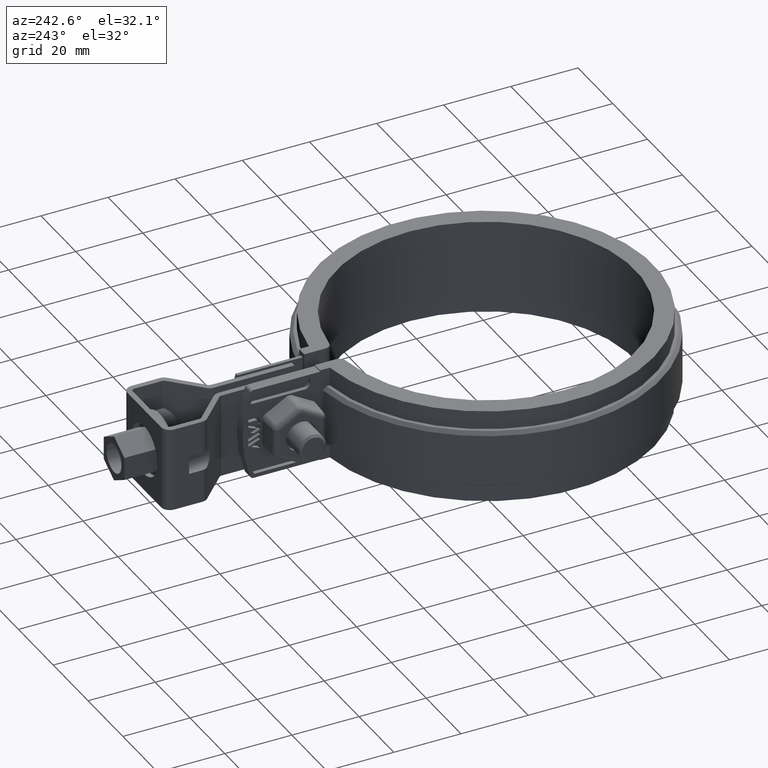
[diagram: clean part render]
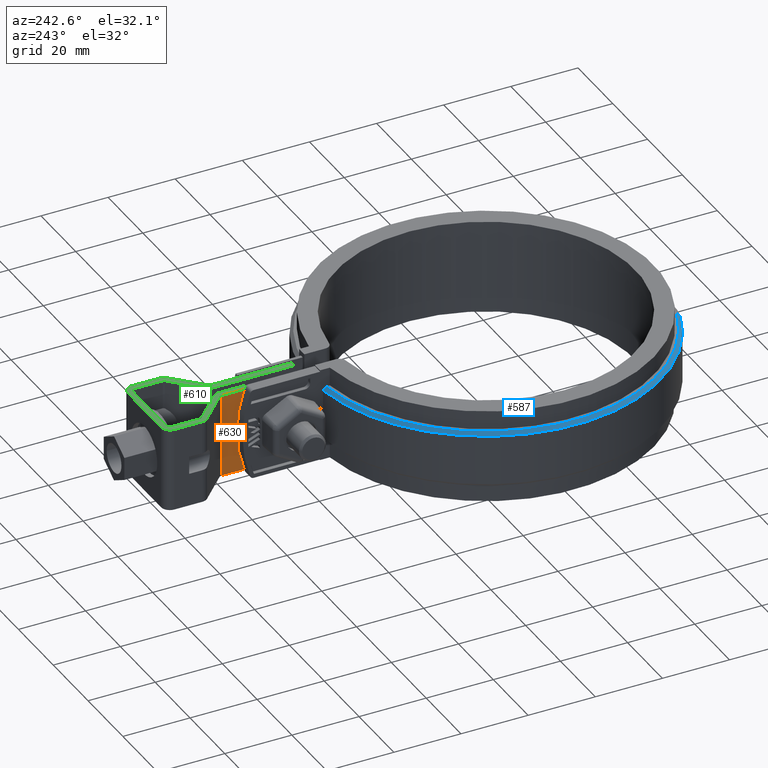
[diagram: same view with three faces highlighted in distinct colors, each labeled with its STEP entity id]
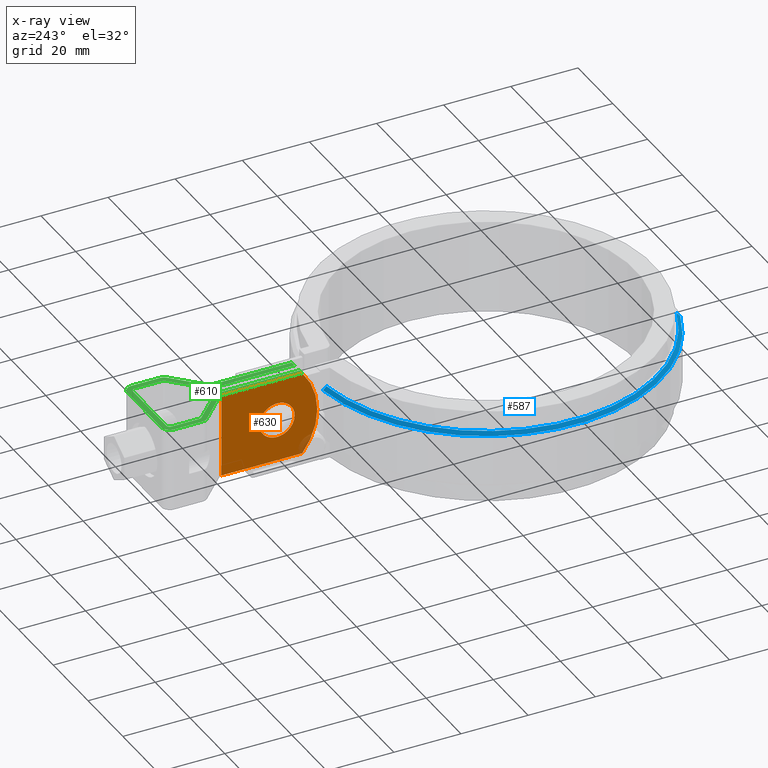
[diagram: x-ray of the same camera — body ghosted, the three highlighted faces saturated]
A machine part, auxiliary view with three faces highlighted in distinct colors.
The next image is the same camera in x-ray (body ghosted, the three faces saturated) — at least one of them is partly hidden behind the body in this view.
Their STEP definitions:

[orange] entity #630 — the highlighted planar face has unit normal (-1, -0, -0).
#630 = ADVANCED_FACE( '', ( #1175, #1176 ), #1177, .T. );
#1175 = FACE_BOUND( '', #2515, .T. );
#1176 = FACE_OUTER_BOUND( '', #2516, .T. );
#1177 = PLANE( '', #2517 );
#2515 = EDGE_LOOP( '', ( #5762 ) );
#2516 = EDGE_LOOP( '', ( #5763, #5764, #5765, #5766 ) );
#2517 = AXIS2_PLACEMENT_3D( '', #5767, #5768, #5769 );
#5762 = ORIENTED_EDGE( '', *, *, #7844, .T. );
#5763 = ORIENTED_EDGE( '', *, *, #7787, .F. );
#5764 = ORIENTED_EDGE( '', *, *, #7835, .T. );
#5765 = ORIENTED_EDGE( '', *, *, #7845, .T. );
#5766 = ORIENTED_EDGE( '', *, *, #7842, .T. );
#5767 = CARTESIAN_POINT( '', ( -3.00000000008606, 80.7719982732364, -12.5000000056463 ) );
#5768 = DIRECTION( '', ( -1.00000000000000, -1.14740277539101E-012, -4.83938419415245E-013 ) );
#5769 = DIRECTION( '', ( -1.14740277536817E-012, 1.00000000000000, -4.71809813440456E-011 ) );
#7787 = EDGE_CURVE( '', #9113, #9115, #9116, .T. );
#7835 = EDGE_CURVE( '', #9113, #9191, #9194, .F. );
#7842 = EDGE_CURVE( '', #9201, #9115, #9205, .T. );
#7844 = EDGE_CURVE( '', #9208, #9208, #9209, .F. );
#7845 = EDGE_CURVE( '', #9191, #9201, #9210, .T. );
#9113 = VERTEX_POINT( '', #13040 );
#9115 = VERTEX_POINT( '', #13042 );
#9116 = LINE( '', #13043, #13044 );
#9191 = VERTEX_POINT( '', #13174 );
#9194 = LINE( '', #13177, #13178 );
#9201 = VERTEX_POINT( '', #13188 );
#9205 = CIRCLE( '', #13193, 19.6111110000000 );
#9208 = VERTEX_POINT( '', #13196 );
#9209 = CIRCLE( '', #13197, 5.25000000000000 );
#9210 = LINE( '', #13198, #13199 );
#13040 = CARTESIAN_POINT( '', ( -3.00000000009767, 80.3505345055258, 12.4999999943736 ) );
#13042 = CARTESIAN_POINT( '', ( -3.00000000007009, 56.2963881389852, 12.5000000014218 ) );
#13043 = CARTESIAN_POINT( '', ( -3.00000000009815, 80.7719982744159, 12.4999999943537 ) );
#13044 = VECTOR( '', #14983, 1000.00000000000 );
#13174 = CARTESIAN_POINT( '', ( -3.00000000008557, 80.3505345043463, -12.5000000056264 ) );
#13177 = CARTESIAN_POINT( '', ( -3.00000000008557, 80.3505345043463, -12.5000000056264 ) );
#13178 = VECTOR( '', #15055, 1000.00000000000 );
#13188 = CARTESIAN_POINT( '', ( -3.00000000005797, 56.2963881329142, -12.5000000044915 ) );
#13193 = AXIS2_PLACEMENT_3D( '', #15066, #15067, #15068 );
#13196 = CARTESIAN_POINT( '', ( -3.00000000007865, 69.0463881004158, -5.09306037621562E-009 ) );
#13197 = AXIS2_PLACEMENT_3D( '', #15072, #15073, #15074 );
#13198 = CARTESIAN_POINT( '', ( -3.00000000008606, 80.7719982732364, -12.5000000056463 ) );
#13199 = VECTOR( '', #15075, 1000.00000000000 );
#14983 = DIRECTION( '', ( 1.14773584227556E-012, -1.00000000000000, 4.71809813440456E-011 ) );
#15055 = DIRECTION( '', ( -4.83938419469381E-013, 4.71809216071525E-011, 1.00000000000000 ) );
#15066 = CARTESIAN_POINT( '', ( -3.00000000008136, 71.4074991004157, -5.20443410589877E-009 ) );
#15067 = DIRECTION( '', ( -1.00000000000000, -1.14740277539101E-012, -4.83938419415245E-013 ) );
#15068 = DIRECTION( '', ( -1.14740277536817E-012, 1.00000000000000, -4.71809813440456E-011 ) );
#15072 = CARTESIAN_POINT( '', ( -3.00000000007263, 63.7963881004158, -4.84536022415938E-009 ) );
#15073 = DIRECTION( '', ( -1.00000000000000, -1.14740277539101E-012, -4.83938419415245E-013 ) );
#15074 = DIRECTION( '', ( -1.14740277536817E-012, 1.00000000000000, -4.71809813440456E-011 ) );
#15075 = DIRECTION( '', ( 1.14773584227556E-012, -1.00000000000000, 4.71809813440456E-011 ) );

[blue] entity #587 — the highlighted conical surface has half-angle 45 deg.
#587 = ADVANCED_FACE( '', ( #1087 ), #1088, .T. );
#1087 = FACE_OUTER_BOUND( '', #2424, .T. );
#1088 = CONICAL_SURFACE( '', #2425, 51.0000000000000, 0.785398163397448 );
#2424 = EDGE_LOOP( '', ( #5312, #5313, #5314, #5315 ) );
#2425 = AXIS2_PLACEMENT_3D( '', #5316, #5317, #5318 );
#5312 = ORIENTED_EDGE( '', *, *, #7670, .F. );
#5313 = ORIENTED_EDGE( '', *, *, #7735, .F. );
#5314 = ORIENTED_EDGE( '', *, *, #7732, .F. );
#5315 = ORIENTED_EDGE( '', *, *, #7736, .F. );
#5316 = CARTESIAN_POINT( '', ( 0.000000000000000, 6.93889390390723E-015, 8.50000000000000 ) );
#5317 = DIRECTION( '', ( 0.000000000000000, 0.000000000000000, -1.00000000000000 ) );
#5318 = DIRECTION( '', ( -1.00000000000000, 0.000000000000000, 0.000000000000000 ) );
#7670 = EDGE_CURVE( '', #8927, #8929, #8930, .T. );
#7732 = EDGE_CURVE( '', #9021, #9022, #9023, .T. );
#7735 = EDGE_CURVE( '', #9022, #8927, #9026, .F. );
#7736 = EDGE_CURVE( '', #8929, #9021, #9027, .T. );
#8927 = VERTEX_POINT( '', #12768 );
#8929 = VERTEX_POINT( '', #12771 );
#8930 = B_SPLINE_CURVE_WITH_KNOTS( '', 3, ( #12772, #12773, #12774, #12775 ), .UNSPECIFIED., .F., .F., ( 4, 4 ), ( 0.000000000000000, 0.00141907064164826 ), .UNSPECIFIED. );
#9021 = VERTEX_POINT( '', #12917 );
#9022 = VERTEX_POINT( '', #12918 );
#9023 = LINE( '', #12919, #12920 );
#9026 = CIRCLE( '', #12923, 52.0000000000000 );
#9027 = CIRCLE( '', #12924, 51.0000000000000 );
#12768 = CARTESIAN_POINT( '', ( -6.00000000000000, 51.6526862805798, 7.50000000000000 ) );
#12771 = CARTESIAN_POINT( '', ( -6.00000000000000, 50.6458290484024, 8.50000000000000 ) );
#12772 = CARTESIAN_POINT( '', ( -6.00000000000000, 51.6526862805798, 7.50000000000000 ) );
#12773 = CARTESIAN_POINT( '', ( -6.00000000000000, 51.3170892556212, 7.83335553551699 ) );
#12774 = CARTESIAN_POINT( '', ( -6.00000000000000, 50.9814706121009, 8.16668930869391 ) );
#12775 = CARTESIAN_POINT( '', ( -6.00000000000000, 50.6458290484024, 8.50000000000000 ) );
#12917 = CARTESIAN_POINT( '', ( -16.3381451583999, -48.3121621621621, 8.50000000000000 ) );
#12918 = CARTESIAN_POINT( '', ( -16.6585009458195, -49.2594594594595, 7.50000000000000 ) );
#12919 = CARTESIAN_POINT( '', ( -16.3381451583999, -48.3121621621621, 8.50000000000000 ) );
#12920 = VECTOR( '', #14880, 1000.00000000000 );
#12923 = AXIS2_PLACEMENT_3D( '', #14887, #14888, #14889 );
#12924 = AXIS2_PLACEMENT_3D( '', #14890, #14891, #14892 );
#14880 = DIRECTION( '', ( -0.226525749676757, -0.669840342718608, -0.707106781186548 ) );
#14887 = CARTESIAN_POINT( '', ( 0.000000000000000, 6.93889390390723E-015, 7.50000000000000 ) );
#14888 = DIRECTION( '', ( 0.000000000000000, 0.000000000000000, 1.00000000000000 ) );
#14889 = DIRECTION( '', ( 1.00000000000000, 0.000000000000000, 0.000000000000000 ) );
#14890 = CARTESIAN_POINT( '', ( 0.000000000000000, 6.93889390390723E-015, 8.50000000000000 ) );
#14891 = DIRECTION( '', ( 0.000000000000000, 0.000000000000000, 1.00000000000000 ) );
#14892 = DIRECTION( '', ( 1.00000000000000, 0.000000000000000, 0.000000000000000 ) );

[green] entity #610 — the highlighted planar face has unit normal (0, -0, -1).
#610 = ADVANCED_FACE( '', ( #1133 ), #1134, .F. );
#1133 = FACE_OUTER_BOUND( '', #2473, .T. );
#1134 = PLANE( '', #2474 );
#2473 = EDGE_LOOP( '', ( #5581, #5582, #5583, #5584, #5585, #5586, #5587, #5588, #5589, #5590, #5591, #5592, #5593, #5594, #5595, #5596, #5597, #5598, #5599, #5600, #5601, #5602, #5603, #5604, #5605, #5606, #5607, #5608 ) );
#2474 = AXIS2_PLACEMENT_3D( '', #5609, #5610, #5611 );
#5581 = ORIENTED_EDGE( '', *, *, #7761, .T. );
#5582 = ORIENTED_EDGE( '', *, *, #7762, .T. );
#5583 = ORIENTED_EDGE( '', *, *, #7763, .F. );
#5584 = ORIENTED_EDGE( '', *, *, #7764, .F. );
#5585 = ORIENTED_EDGE( '', *, *, #7765, .F. );
#5586 = ORIENTED_EDGE( '', *, *, #7766, .F. );
#5587 = ORIENTED_EDGE( '', *, *, #7767, .F. );
#5588 = ORIENTED_EDGE( '', *, *, #7768, .T. );
#5589 = ORIENTED_EDGE( '', *, *, #7769, .T. );
#5590 = ORIENTED_EDGE( '', *, *, #7770, .T. );
#5591 = ORIENTED_EDGE( '', *, *, #7771, .T. );
#5592 = ORIENTED_EDGE( '', *, *, #7772, .F. );
#5593 = ORIENTED_EDGE( '', *, *, #7773, .F. );
#5594 = ORIENTED_EDGE( '', *, *, #7774, .T. );
#5595 = ORIENTED_EDGE( '', *, *, #7775, .F. );
#5596 = ORIENTED_EDGE( '', *, *, #7776, .F. );
#5597 = ORIENTED_EDGE( '', *, *, #7777, .T. );
#5598 = ORIENTED_EDGE( '', *, *, #7778, .T. );
#5599 = ORIENTED_EDGE( '', *, *, #7779, .T. );
#5600 = ORIENTED_EDGE( '', *, *, #7780, .T. );
#5601 = ORIENTED_EDGE( '', *, *, #7781, .F. );
#5602 = ORIENTED_EDGE( '', *, *, #7782, .F. );
#5603 = ORIENTED_EDGE( '', *, *, #7783, .F. );
#5604 = ORIENTED_EDGE( '', *, *, #7784, .F. );
#5605 = ORIENTED_EDGE( '', *, *, #7785, .F. );
#5606 = ORIENTED_EDGE( '', *, *, #7786, .T. );
#5607 = ORIENTED_EDGE( '', *, *, #7787, .T. );
#5608 = ORIENTED_EDGE( '', *, *, #7788, .F. );
#5609 = CARTESIAN_POINT( '', ( -9.65000000011931, 99.1963881009979, 12.4999999934812 ) );
#5610 = DIRECTION( '', ( 4.83999649787072E-013, -4.71809813440451E-011, -1.00000000000000 ) );
#5611 = DIRECTION( '', ( -1.14762481997310E-012, 1.00000000000000, -4.71809813440456E-011 ) );
#7761 = EDGE_CURVE( '', #9062, #9063, #9064, .T. );
#7762 = EDGE_CURVE( '', #9063, #9065, #9066, .F. );
#7763 = EDGE_CURVE( '', #9067, #9065, #9068, .T. );
#7764 = EDGE_CURVE( '', #9069, #9067, #9070, .T. );
#7765 = EDGE_CURVE( '', #9071, #9069, #9072, .T. );
#7766 = EDGE_CURVE( '', #9073, #9071, #9074, .T. );
#7767 = EDGE_CURVE( '', #9075, #9073, #9076, .T. );
#7768 = EDGE_CURVE( '', #9075, #9077, #9078, .T. );
#7769 = EDGE_CURVE( '', #9077, #9079, #9080, .T. );
#7770 = EDGE_CURVE( '', #9079, #9081, #9082, .T. );
#7771 = EDGE_CURVE( '', #9081, #9083, #9084, .T. );
#7772 = EDGE_CURVE( '', #9085, #9083, #9086, .F. );
#7773 = EDGE_CURVE( '', #9087, #9085, #9088, .T. );
#7774 = EDGE_CURVE( '', #9087, #9089, #9090, .F. );
#7775 = EDGE_CURVE( '', #9091, #9089, #9092, .T. );
#7776 = EDGE_CURVE( '', #9093, #9091, #9094, .T. );
#7777 = EDGE_CURVE( '', #9093, #9095, #9096, .T. );
#7778 = EDGE_CURVE( '', #9095, #9097, #9098, .T. );
#7779 = EDGE_CURVE( '', #9097, #9099, #9100, .T. );
#7780 = EDGE_CURVE( '', #9099, #9101, #9102, .T. );
#7781 = EDGE_CURVE( '', #9103, #9101, #9104, .T. );
#7782 = EDGE_CURVE( '', #9105, #9103, #9106, .T. );
#7783 = EDGE_CURVE( '', #9107, #9105, #9108, .T. );
#7784 = EDGE_CURVE( '', #9109, #9107, #9110, .T. );
#7785 = EDGE_CURVE( '', #9111, #9109, #9112, .T. );
#7786 = EDGE_CURVE( '', #9111, #9113, #9114, .T. );
#7787 = EDGE_CURVE( '', #9113, #9115, #9116, .T. );
#7788 = EDGE_CURVE( '', #9062, #9115, #9117, .F. );
#9062 = VERTEX_POINT( '', #12975 );
#9063 = VERTEX_POINT( '', #12976 );
#9064 = LINE( '', #12977, #12978 );
#9065 = VERTEX_POINT( '', #12979 );
#9066 = CIRCLE( '', #12980, 2.60000000000000 );
#9067 = VERTEX_POINT( '', #12981 );
#9068 = LINE( '', #12982, #12983 );
#9069 = VERTEX_POINT( '', #12984 );
#9070 = CIRCLE( '', #12985, 1.00000000000000 );
#9071 = VERTEX_POINT( '', #12986 );
#9072 = LINE( '', #12987, #12988 );
#9073 = VERTEX_POINT( '', #12989 );
#9074 = CIRCLE( '', #12990, 1.00000000000000 );
#9075 = VERTEX_POINT( '', #12991 );
#9076 = LINE( '', #12992, #12993 );
#9077 = VERTEX_POINT( '', #12994 );
#9078 = CIRCLE( '', #12995, 1.00000000000000 );
#9079 = VERTEX_POINT( '', #12996 );
#9080 = LINE( '', #12997, #12998 );
#9081 = VERTEX_POINT( '', #12999 );
#9082 = CIRCLE( '', #13000, 0.999999999999999 );
#9083 = VERTEX_POINT( '', #13001 );
#9084 = LINE( '', #13002, #13003 );
#9085 = VERTEX_POINT( '', #13004 );
#9086 = CIRCLE( '', #13005, 2.59999999999999 );
#9087 = VERTEX_POINT( '', #13006 );
#9088 = LINE( '', #13007, #13008 );
#9089 = VERTEX_POINT( '', #13009 );
#9090 = LINE( '', #13010, #13011 );
#9091 = VERTEX_POINT( '', #13012 );
#9092 = LINE( '', #13013, #13014 );
#9093 = VERTEX_POINT( '', #13015 );
#9094 = CIRCLE( '', #13016, 0.999999999999998 );
#9095 = VERTEX_POINT( '', #13017 );
#9096 = LINE( '', #13018, #13019 );
#9097 = VERTEX_POINT( '', #13020 );
#9098 = CIRCLE( '', #13021, 2.59999999999999 );
#9099 = VERTEX_POINT( '', #13022 );
#9100 = LINE( '', #13023, #13024 );
#9101 = VERTEX_POINT( '', #13025 );
#9102 = CIRCLE( '', #13026, 2.59999999999999 );
#9103 = VERTEX_POINT( '', #13027 );
#9104 = LINE( '', #13028, #13029 );
#9105 = VERTEX_POINT( '', #13030 );
#9106 = CIRCLE( '', #13031, 2.59999999999999 );
#9107 = VERTEX_POINT( '', #13032 );
#9108 = LINE( '', #13033, #13034 );
#9109 = VERTEX_POINT( '', #13035 );
#9110 = CIRCLE( '', #13036, 2.59999999999999 );
#9111 = VERTEX_POINT( '', #13037 );
#9112 = LINE( '', #13038, #13039 );
#9113 = VERTEX_POINT( '', #13040 );
#9114 = CIRCLE( '', #13041, 1.00000000000000 );
#9115 = VERTEX_POINT( '', #13042 );
#9116 = LINE( '', #13043, #13044 );
#9117 = LINE( '', #13045, #13046 );
#12975 = CARTESIAN_POINT( '', ( -1.40000000007007, 56.2963881340955, 12.4999999955093 ) );
#12976 = CARTESIAN_POINT( '', ( -1.40000000009768, 80.3505344753036, 12.4999999943744 ) );
#12977 = CARTESIAN_POINT( '', ( -1.40000000006491, 51.7963881010075, 12.4999999957216 ) );
#12978 = VECTOR( '', #14933, 1000.00000000000 );
#12979 = CARTESIAN_POINT( '', ( -2.18435802772052, 82.2115675830508, 12.4999999942862 ) );
#12980 = AXIS2_PLACEMENT_3D( '', #14934, #14935, #14936 );
#12981 = CARTESIAN_POINT( '', ( -10.3483238356395, 90.1764119053686, 12.4999999939064 ) );
#12982 = CARTESIAN_POINT( '', ( -10.3483238356395, 90.1764119053686, 12.4999999939064 ) );
#12983 = VECTOR( '', #14937, 1000.00000000000 );
#12984 = CARTESIAN_POINT( '', ( -10.6500000001098, 90.8921938698868, 12.4999999938725 ) );
#12985 = AXIS2_PLACEMENT_3D( '', #14938, #14939, #14940 );
#12986 = CARTESIAN_POINT( '', ( -10.6500000001193, 99.1963881009967, 12.4999999934807 ) );
#12987 = CARTESIAN_POINT( '', ( -10.6500000001193, 99.1963881009967, 12.4999999934807 ) );
#12988 = VECTOR( '', #14941, 1000.00000000000 );
#12989 = CARTESIAN_POINT( '', ( -9.65000000012046, 100.196388100998, 12.4999999934340 ) );
#12990 = AXIS2_PLACEMENT_3D( '', #14942, #14943, #14944 );
#12991 = CARTESIAN_POINT( '', ( 9.64999999987954, 100.196388101020, 12.4999999934434 ) );
#12992 = CARTESIAN_POINT( '', ( 9.64999999987956, 100.196388101020, 12.4999999934434 ) );
#12993 = VECTOR( '', #14945, 1000.00000000000 );
#12994 = CARTESIAN_POINT( '', ( 10.6499999998807, 99.1963881010215, 12.4999999934911 ) );
#12995 = AXIS2_PLACEMENT_3D( '', #14946, #14947, #14948 );
#12996 = CARTESIAN_POINT( '', ( 10.6499999998902, 90.8921938699115, 12.4999999938829 ) );
#12997 = CARTESIAN_POINT( '', ( 10.6499999998807, 99.1963881010215, 12.4999999934911 ) );
#12998 = VECTOR( '', #14949, 1000.00000000000 );
#12999 = CARTESIAN_POINT( '', ( 10.3483238354215, 90.1764119053927, 12.4999999939165 ) );
#13000 = AXIS2_PLACEMENT_3D( '', #14950, #14951, #14952 );
#13001 = CARTESIAN_POINT( '', ( 2.18435802752089, 82.2115675830561, 12.4999999942883 ) );
#13002 = CARTESIAN_POINT( '', ( 10.3483238354215, 90.1764119053927, 12.4999999939165 ) );
#13003 = VECTOR( '', #14953, 1000.00000000000 );
#13004 = CARTESIAN_POINT( '', ( 1.39999999990232, 80.3505344753071, 12.4999999943757 ) );
#13005 = AXIS2_PLACEMENT_3D( '', #14954, #14955, #14956 );
#13006 = CARTESIAN_POINT( '', ( 1.39999999992992, 56.2963881340990, 12.4999999955106 ) );
#13007 = CARTESIAN_POINT( '', ( 1.39999999993509, 51.7963881010110, 12.4999999957229 ) );
#13008 = VECTOR( '', #14957, 1000.00000000000 );
#13009 = CARTESIAN_POINT( '', ( 2.99999999992994, 56.2963881389924, 12.5000000014247 ) );
#13010 = CARTESIAN_POINT( '', ( 38.4737108565257, 56.2963881341415, 12.4999999955286 ) );
#13011 = VECTOR( '', #14958, 999.999999999998 );
#13012 = CARTESIAN_POINT( '', ( 2.99999999990231, 80.3505345055330, 12.4999999943765 ) );
#13013 = CARTESIAN_POINT( '', ( 2.99999999990183, 80.7719982744231, 12.4999999943566 ) );
#13014 = VECTOR( '', #14959, 1000.00000000000 );
#13015 = CARTESIAN_POINT( '', ( 3.30167616437099, 81.0663164700519, 12.4999999943429 ) );
#13016 = AXIS2_PLACEMENT_3D( '', #14960, #14961, #14962 );
#13017 = CARTESIAN_POINT( '', ( 11.4656419722716, 89.0311607923885, 12.4999999939711 ) );
#13018 = CARTESIAN_POINT( '', ( 3.90167616437032, 81.6516822966422, 12.4999999943156 ) );
#13019 = VECTOR( '', #14963, 1000.00000000000 );
#13020 = CARTESIAN_POINT( '', ( 12.2499999998902, 90.8921939001375, 12.4999999938836 ) );
#13021 = AXIS2_PLACEMENT_3D( '', #14964, #14965, #14966 );
#13022 = CARTESIAN_POINT( '', ( 12.2499999998807, 99.1963881010234, 12.4999999934918 ) );
#13023 = CARTESIAN_POINT( '', ( 12.2499999998902, 90.8921939001375, 12.4999999938836 ) );
#13024 = VECTOR( '', #14967, 1000.00000000000 );
#13025 = CARTESIAN_POINT( '', ( 9.64999999987770, 101.796388101020, 12.4999999933679 ) );
#13026 = AXIS2_PLACEMENT_3D( '', #14968, #14969, #14970 );
#13027 = CARTESIAN_POINT( '', ( -9.65000000012229, 101.796388100998, 12.4999999933585 ) );
#13028 = CARTESIAN_POINT( '', ( -9.65000000012229, 101.796388100998, 12.4999999933585 ) );
#13029 = VECTOR( '', #14971, 1000.00000000000 );
#13030 = CARTESIAN_POINT( '', ( -12.2500000001193, 99.1963881009949, 12.4999999934800 ) );
#13031 = AXIS2_PLACEMENT_3D( '', #14972, #14973, #14974 );
#13032 = CARTESIAN_POINT( '', ( -12.2500000001098, 90.8921939001090, 12.4999999938717 ) );
#13033 = CARTESIAN_POINT( '', ( -12.2500000001098, 90.8921939001090, 12.4999999938717 ) );
#13034 = VECTOR( '', #14975, 1000.00000000000 );
#13035 = CARTESIAN_POINT( '', ( -11.4656419724869, 89.0311607923619, 12.4999999939599 ) );
#13036 = AXIS2_PLACEMENT_3D( '', #14976, #14977, #14978 );
#13037 = CARTESIAN_POINT( '', ( -3.30167616456799, 81.0663164700440, 12.4999999943397 ) );
#13038 = CARTESIAN_POINT( '', ( -3.90167616456867, 81.6516822966329, 12.4999999943118 ) );
#13039 = VECTOR( '', #14979, 1000.00000000000 );
#13040 = CARTESIAN_POINT( '', ( -3.00000000009767, 80.3505345055258, 12.4999999943736 ) );
#13041 = AXIS2_PLACEMENT_3D( '', #14980, #14981, #14982 );
#13042 = CARTESIAN_POINT( '', ( -3.00000000007009, 56.2963881389852, 12.5000000014218 ) );
#13043 = CARTESIAN_POINT( '', ( -3.00000000009815, 80.7719982744159, 12.4999999943537 ) );
#13044 = VECTOR( '', #14983, 1000.00000000000 );
#13045 = CARTESIAN_POINT( '', ( -38.4737108566660, 56.2963881340530, 12.4999999954913 ) );
#13046 = VECTOR( '', #14984, 1000.00000000000 );
#14933 = DIRECTION( '', ( -1.14773584227556E-012, 1.00000000000000, -4.71809813440456E-011 ) );
#14934 = CARTESIAN_POINT( '', ( -4.00000000009767, 80.3505344753006, 12.4999999943731 ) );
#14935 = DIRECTION( '', ( 4.83999649787072E-013, -4.71809813440451E-011, -1.00000000000000 ) );
#14936 = DIRECTION( '', ( -1.00000000000000, -1.14762481999593E-012, -4.83999649732926E-013 ) );
#14937 = DIRECTION( '', ( 0.715781964519306, -0.698323835529679, 3.32940420763790E-011 ) );
#14938 = CARTESIAN_POINT( '', ( -9.65000000010978, 90.8921938698879, 12.4999999938730 ) );
#14939 = DIRECTION( '', ( -4.83999649787072E-013, 4.71809813440451E-011, 1.00000000000000 ) );
#14940 = DIRECTION( '', ( -1.00000000000000, -1.14762481999594E-012, -4.83999649732926E-013 ) );
#14941 = DIRECTION( '', ( 1.14762481997310E-012, -1.00000000000000, 4.71809813440456E-011 ) );
#14942 = CARTESIAN_POINT( '', ( -9.65000000011931, 99.1963881009979, 12.4999999934812 ) );
#14943 = DIRECTION( '', ( -4.83999649787072E-013, 4.71809813440451E-011, 1.00000000000000 ) );
#14944 = DIRECTION( '', ( -1.14762481997310E-012, 1.00000000000000, -4.71809813440456E-011 ) );
#14945 = DIRECTION( '', ( -1.00000000000000, -1.14762481999594E-012, -4.83999649732926E-013 ) );
#14946 = CARTESIAN_POINT( '', ( 9.64999999988068, 99.1963881010204, 12.4999999934906 ) );
#14947 = DIRECTION( '', ( 4.83999649787072E-013, -4.71809813440451E-011, -1.00000000000000 ) );
#14948 = DIRECTION( '', ( -1.14750235933772E-012, 1.00000000000000, -4.71809813440456E-011 ) );
#14949 = DIRECTION( '', ( 1.14750235933772E-012, -1.00000000000000, 4.71809813440456E-011 ) );
#14950 = CARTESIAN_POINT( '', ( 9.64999999989021, 90.8921938699104, 12.4999999938824 ) );
#14951 = DIRECTION( '', ( 4.83999649787072E-013, -4.71809813440451E-011, -1.00000000000000 ) );
#14952 = DIRECTION( '', ( 1.00000000000000, 1.14750235936055E-012, 4.83999649732932E-013 ) );
#14953 = DIRECTION( '', ( -0.715781964517702, -0.698323835531324, 3.26011656361549E-011 ) );
#14954 = CARTESIAN_POINT( '', ( 3.99999999990231, 80.3505344753101, 12.4999999943770 ) );
#14955 = DIRECTION( '', ( -4.83999649787072E-013, 4.71809813440451E-011, 1.00000000000000 ) );
#14956 = DIRECTION( '', ( 1.00000000000000, 1.14750235936055E-012, 4.83999649732932E-013 ) );
#14957 = DIRECTION( '', ( -1.14739133703525E-012, 1.00000000000000, -4.71809813440456E-011 ) );
#14958 = DIRECTION( '', ( -1.00000000000000, -1.14750235936055E-012, -4.83999649732932E-013 ) );
#14959 = DIRECTION( '', ( 1.14739133703525E-012, -1.00000000000000, 4.71809813440456E-011 ) );
#14960 = CARTESIAN_POINT( '', ( 3.99999999990231, 80.3505345055342, 12.4999999943770 ) );
#14961 = DIRECTION( '', ( -4.83999649787072E-013, 4.71809813440451E-011, 1.00000000000000 ) );
#14962 = DIRECTION( '', ( 1.00000000000000, 1.14750235936055E-012, 4.83999649732932E-013 ) );
#14963 = DIRECTION( '', ( 0.715781964517702, 0.698323835531324, -3.26011656361549E-011 ) );
#14964 = CARTESIAN_POINT( '', ( 9.64999999989021, 90.8921939001345, 12.4999999938824 ) );
#14965 = DIRECTION( '', ( -4.83999649787076E-013, 4.71809813440451E-011, 1.00000000000000 ) );
#14966 = DIRECTION( '', ( 0.698323835531321, -0.715781964517704, 3.41092840061489E-011 ) );
#14967 = DIRECTION( '', ( -1.14750235933772E-012, 1.00000000000000, -4.71809813440456E-011 ) );
#14968 = CARTESIAN_POINT( '', ( 9.64999999988068, 99.1963881010204, 12.4999999934906 ) );
#14969 = DIRECTION( '', ( -4.83999649787072E-013, 4.71809813440451E-011, 1.00000000000000 ) );
#14970 = DIRECTION( '', ( 1.00000000000000, 1.14750235936055E-012, 4.83999649732932E-013 ) );
#14971 = DIRECTION( '', ( 1.00000000000000, 1.14762481999594E-012, 4.83999649732926E-013 ) );
#14972 = CARTESIAN_POINT( '', ( -9.65000000011931, 99.1963881009979, 12.4999999934812 ) );
#14973 = DIRECTION( '', ( 4.83999649787072E-013, -4.71809813440451E-011, -1.00000000000000 ) );
#14974 = DIRECTION( '', ( -1.00000000000000, -1.14762481999594E-012, -4.83999649732926E-013 ) );
#14975 = DIRECTION( '', ( -1.14762481997310E-012, 1.00000000000000, -4.71809813440456E-011 ) );
#14976 = CARTESIAN_POINT( '', ( -9.65000000010978, 90.8921939001120, 12.4999999938730 ) );
#14977 = DIRECTION( '', ( 4.83999649787073E-013, -4.71809813440451E-011, -1.00000000000000 ) );
#14978 = DIRECTION( '', ( -0.698323835529680, -0.715781964519305, 3.34333070225549E-011 ) );
#14979 = DIRECTION( '', ( -0.715781964519306, 0.698323835529679, -3.32940420763790E-011 ) );
#14980 = CARTESIAN_POINT( '', ( -4.00000000009767, 80.3505345055247, 12.4999999943731 ) );
#14981 = DIRECTION( '', ( 4.83999649787072E-013, -4.71809813440451E-011, -1.00000000000000 ) );
#14982 = DIRECTION( '', ( -1.00000000000000, -1.14762481999594E-012, -4.83999649732926E-013 ) );
#14983 = DIRECTION( '', ( 1.14773584227556E-012, -1.00000000000000, 4.71809813440456E-011 ) );
#14984 = DIRECTION( '', ( 1.00000000000000, 1.14762481999594E-012, 4.83999649732926E-013 ) );